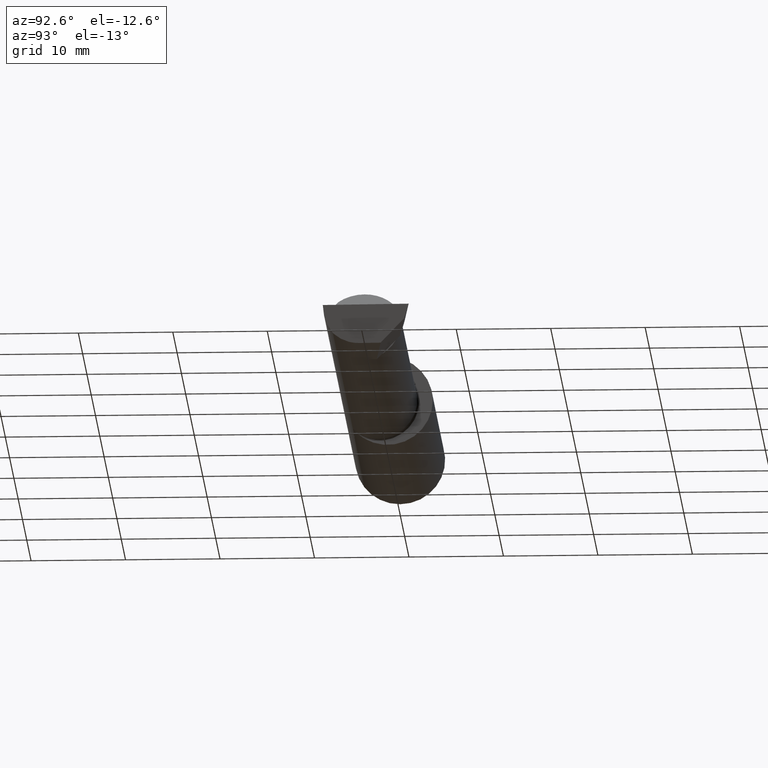
[diagram: clean part render]
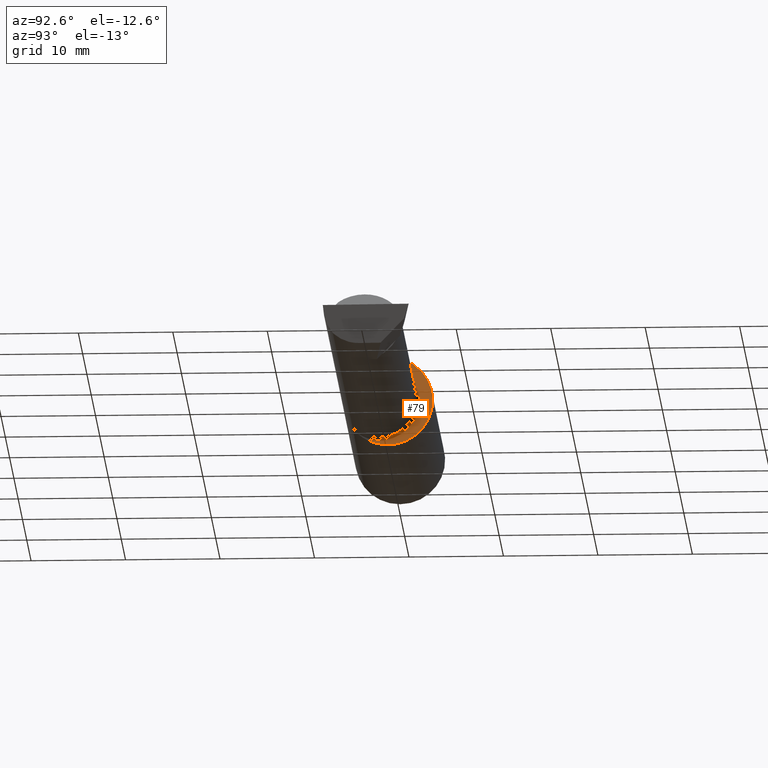
[diagram: same view with one face highlighted and labeled with its STEP entity id]
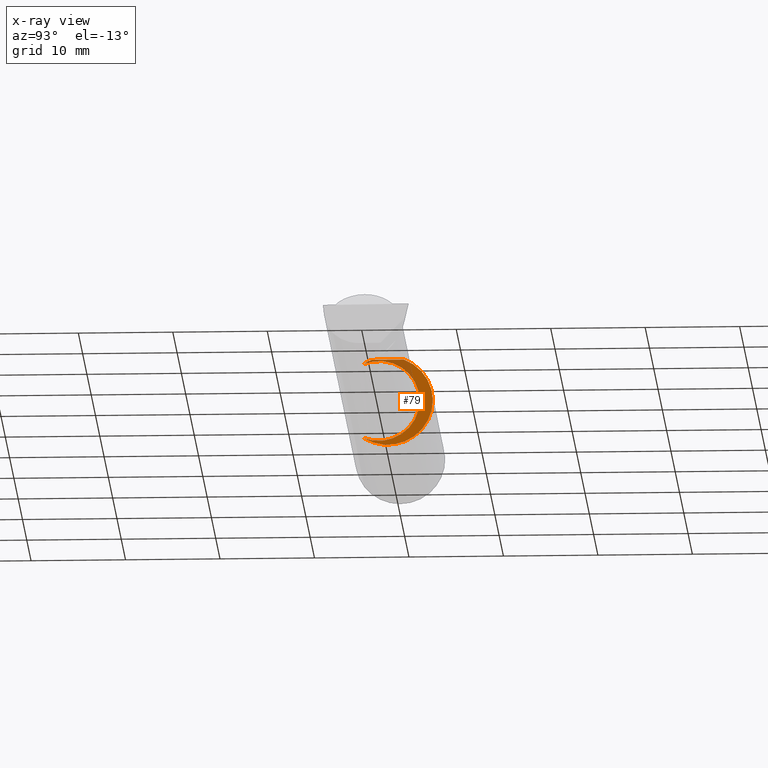
[diagram: x-ray of the same camera — body ghosted, the highlighted face saturated]
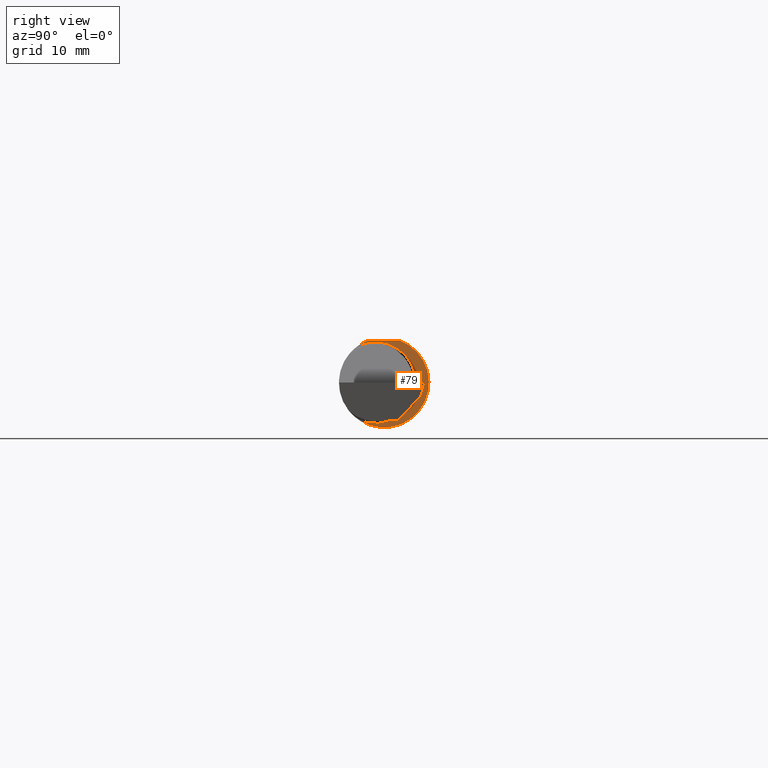
[diagram: same view with one face highlighted and labeled with its STEP entity id]
A machine part, auxiliary view. The second image highlights one B-rep face of the part: STEP entity #79.
The next image is the same camera in x-ray: the body ghosted, the highlighted face saturated — about 16% of this face is hidden behind the body in this view.
A second angle (right view) of the same face is appended — the face is thin or edge-on in the first view.
In plain terms, the highlighted planar face has unit normal (1, -0, 0).
Its self-contained STEP definition (entity closure, byte-faithful):
#9 = ORIENTED_EDGE ( 'NONE', *, *, #76, .T. ) ;
#10 = DIRECTION ( 'NONE',  ( 0.0000000000000000000, -1.000000000000000000, 0.0000000000000000000 ) ) ;
#42 = AXIS2_PLACEMENT_3D ( 'NONE', #353, #157, #10 ) ;
#75 = CARTESIAN_POINT ( 'NONE',  ( 1.150000000000000133, -0.1013606951871667550, 0.1575627873933888867 ) ) ;
#76 = EDGE_CURVE ( 'NONE', #170, #332, #266, .T. ) ;
#77 = EDGE_LOOP ( 'NONE', ( #114, #9, #414, #360 ) ) ;
#79 = ADVANCED_FACE ( 'NONE', ( #100 ), #172, .T. ) ;
#95 = VERTEX_POINT ( 'NONE', #223 ) ;
#96 = AXIS2_PLACEMENT_3D ( 'NONE', #450, #421, #227 ) ;
#100 = FACE_OUTER_BOUND ( 'NONE', #77, .T. ) ;
#110 = EDGE_CURVE ( 'NONE', #310, #95, #320, .T. ) ;
#114 = ORIENTED_EDGE ( 'NONE', *, *, #273, .T. ) ;
#118 = CIRCLE ( 'NONE', #539, 0.1873499999999999888 ) ;
#152 = DIRECTION ( 'NONE',  ( 1.000000000000000000, -5.691349986800549142E-18, 0.0000000000000000000 ) ) ;
#157 = DIRECTION ( 'NONE',  ( -1.000000000000000000, 5.691349986800549142E-18, -0.0000000000000000000 ) ) ;
#166 = VECTOR ( 'NONE', #485, 39.37007874015748143 ) ;
#170 = VERTEX_POINT ( 'NONE', #432 ) ;
#172 = PLANE ( 'NONE',  #96 ) ;
#208 = DIRECTION ( 'NONE',  ( 0.0000000000000000000, 1.000000000000000000, 0.0000000000000000000 ) ) ;
#223 = CARTESIAN_POINT ( 'NONE',  ( 1.150000000000000133, -0.1013606951871667550, -0.1575627873933888867 ) ) ;
#227 = DIRECTION ( 'NONE',  ( 5.691349986800549142E-18, 1.000000000000000000, 0.0000000000000000000 ) ) ;
#266 = LINE ( 'NONE', #476, #166 ) ;
#273 = EDGE_CURVE ( 'NONE', #95, #170, #347, .T. ) ;
#284 = DIRECTION ( 'NONE',  ( 1.000000000000000000, -5.691349986800549142E-18, 0.0000000000000000000 ) ) ;
#292 = AXIS2_PLACEMENT_3D ( 'NONE', #590, #284, #551 ) ;
#310 = VERTEX_POINT ( 'NONE', #75 ) ;
#320 = CIRCLE ( 'NONE', #42, 0.1700499999999997569 ) ;
#332 = VERTEX_POINT ( 'NONE', #357 ) ;
#347 = CIRCLE ( 'NONE', #292, 0.1873499999999999888 ) ;
#353 = CARTESIAN_POINT ( 'NONE',  ( 1.150000000000000133, -0.03739999999999999575, 0.0000000000000000000 ) ) ;
#357 = CARTESIAN_POINT ( 'NONE',  ( 1.150000000000000133, -0.06597272163553659363, 0.1753499999999999781 ) ) ;
#360 = ORIENTED_EDGE ( 'NONE', *, *, #110, .T. ) ;
#398 = CARTESIAN_POINT ( 'NONE',  ( 1.150000000000000133, 0.0000000000000000000, 0.0000000000000000000 ) ) ;
#414 = ORIENTED_EDGE ( 'NONE', *, *, #557, .T. ) ;
#421 = DIRECTION ( 'NONE',  ( 1.000000000000000000, -5.691349986800549142E-18, 0.0000000000000000000 ) ) ;
#432 = CARTESIAN_POINT ( 'NONE',  ( 1.150000000000000133, 0.06597272163553680180, 0.1753499999999999781 ) ) ;
#450 = CARTESIAN_POINT ( 'NONE',  ( 1.150000000000000133, 0.1326499999999997681, 0.0000000000000000000 ) ) ;
#476 = CARTESIAN_POINT ( 'NONE',  ( 1.150000000000000133, 0.2373500000000000332, 0.1753499999999999504 ) ) ;
#485 = DIRECTION ( 'NONE',  ( -5.691349986800549142E-18, -1.000000000000000000, 1.438723400918613551E-16 ) ) ;
#539 = AXIS2_PLACEMENT_3D ( 'NONE', #398, #152, #208 ) ;
#551 = DIRECTION ( 'NONE',  ( 0.0000000000000000000, 1.000000000000000000, 0.0000000000000000000 ) ) ;
#557 = EDGE_CURVE ( 'NONE', #332, #310, #118, .T. ) ;
#590 = CARTESIAN_POINT ( 'NONE',  ( 1.150000000000000133, 0.0000000000000000000, 0.0000000000000000000 ) ) ;